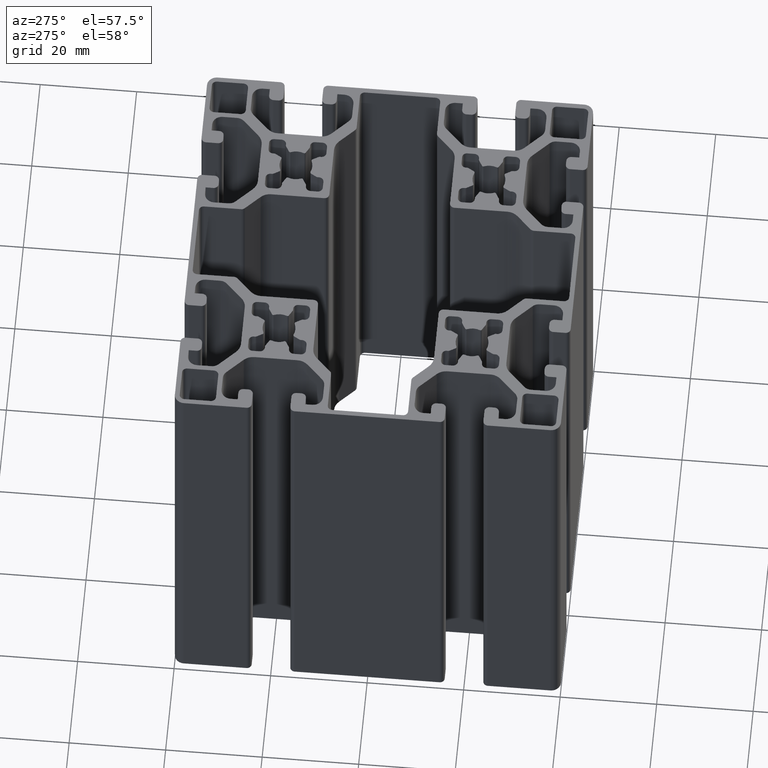
[diagram: clean part render]
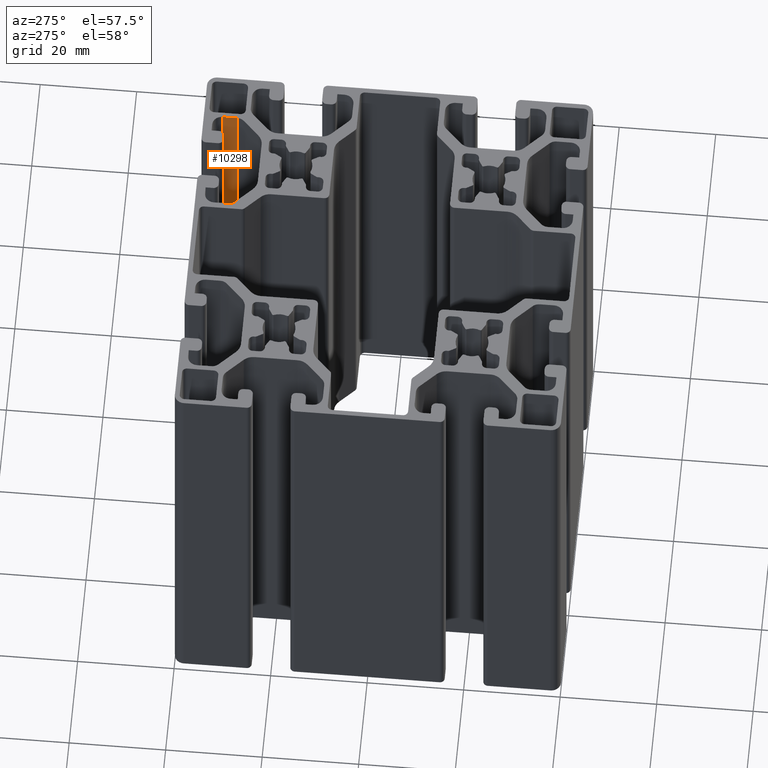
[diagram: same view with one face highlighted and labeled with its STEP entity id]
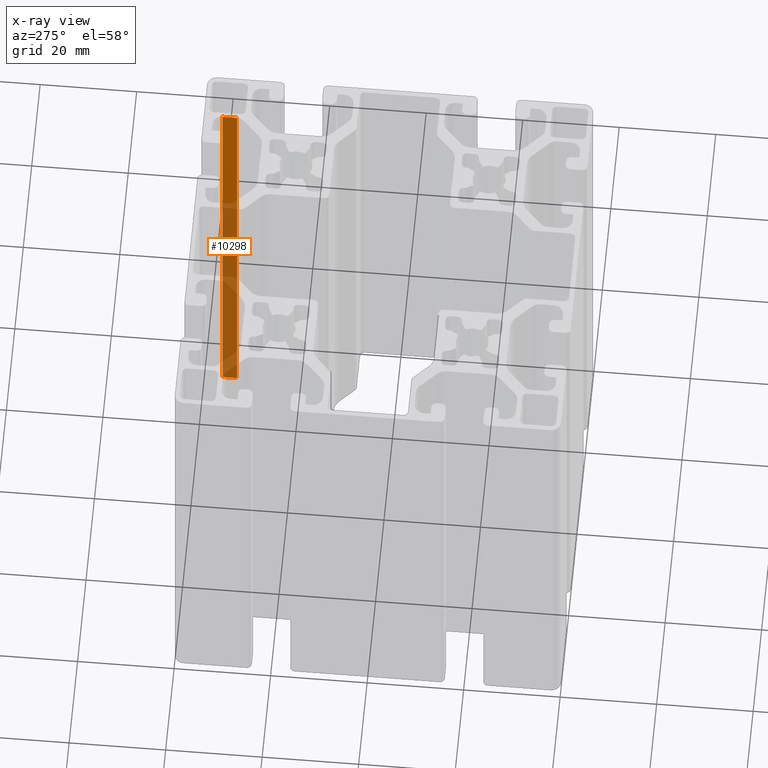
[diagram: x-ray of the same camera — body ghosted, the highlighted face saturated]
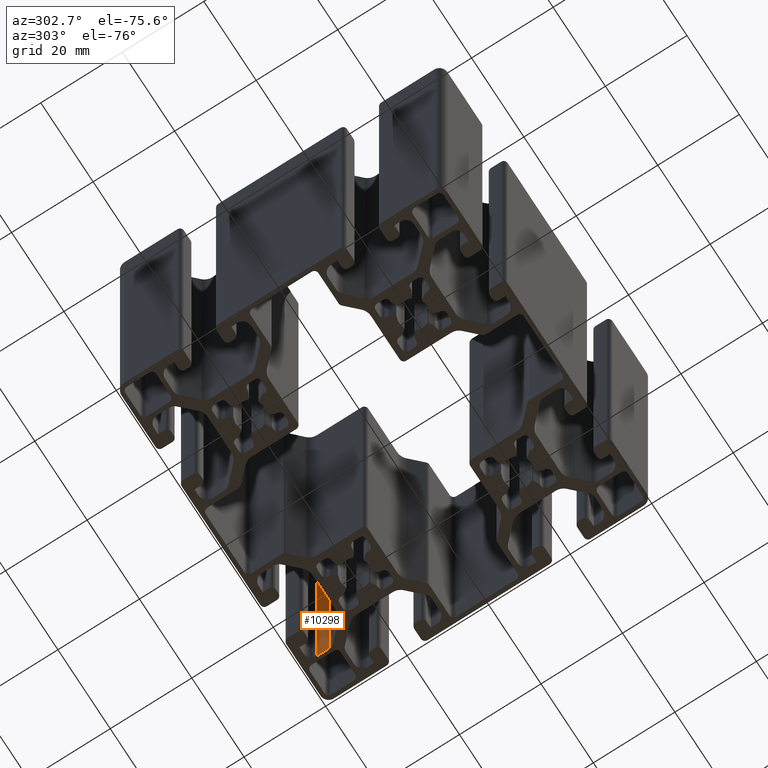
[diagram: same view with one face highlighted and labeled with its STEP entity id]
A machine part, auxiliary view. The second image highlights one B-rep face of the part: STEP entity #10298.
The next image is the same camera in x-ray: the body ghosted, the highlighted face saturated — about 67% of this face is hidden behind the body in this view.
A second angle (auxiliary view) of the same face is appended — the face is thin or edge-on in the first view.
In plain terms, the highlighted planar face has unit normal (1, 0, 0).
Its self-contained STEP definition (entity closure, byte-faithful):
#1074=FACE_OUTER_BOUND('',#1604,.T.);
#1604=EDGE_LOOP('',(#7547,#7548,#7549,#7550));
#2391=LINE('',#16243,#3431);
#2392=LINE('',#16246,#3432);
#2393=LINE('',#16248,#3433);
#2394=LINE('',#16249,#3434);
#3431=VECTOR('',#13031,100.);
#3432=VECTOR('',#13034,3.00380592228743);
#3433=VECTOR('',#13035,3.00380592228743);
#3434=VECTOR('',#13036,100.);
#4471=VERTEX_POINT('',#16239);
#4472=VERTEX_POINT('',#16241);
#4473=VERTEX_POINT('',#16245);
#4474=VERTEX_POINT('',#16247);
#5745=EDGE_CURVE('',#4472,#4471,#2391,.T.);
#5746=EDGE_CURVE('',#4471,#4473,#2392,.T.);
#5747=EDGE_CURVE('',#4474,#4472,#2393,.T.);
#5748=EDGE_CURVE('',#4474,#4473,#2394,.T.);
#7547=ORIENTED_EDGE('',*,*,#5746,.F.);
#7548=ORIENTED_EDGE('',*,*,#5745,.F.);
#7549=ORIENTED_EDGE('',*,*,#5747,.F.);
#7550=ORIENTED_EDGE('',*,*,#5748,.T.);
#9931=PLANE('',#11048);
#10298=ADVANCED_FACE('',(#1074),#9931,.F.);
#11048=AXIS2_PLACEMENT_3D('',#16244,#13032,#13033);
#13031=DIRECTION('',(0.,0.,1.));
#13032=DIRECTION('center_axis',(1.,1.47842178003259E-15,0.));
#13033=DIRECTION('ref_axis',(0.,0.,-1.));
#13034=DIRECTION('',(1.4784217800326E-15,-1.,0.));
#13035=DIRECTION('',(-1.4784217800326E-15,1.,0.));
#13036=DIRECTION('',(0.,0.,1.));
#16239=CARTESIAN_POINT('',(30.5,36.1,100.));
#16241=CARTESIAN_POINT('',(30.5,36.1,0.));
#16243=CARTESIAN_POINT('',(30.5,36.1,0.));
#16244=CARTESIAN_POINT('Origin',(30.5,36.1,0.));
#16245=CARTESIAN_POINT('',(30.5,33.0961940777126,100.));
#16246=CARTESIAN_POINT('',(30.5,18.05,100.));
#16247=CARTESIAN_POINT('',(30.5,33.0961940777126,0.));
#16248=CARTESIAN_POINT('',(30.5,18.05,0.));
#16249=CARTESIAN_POINT('',(30.5,33.0961940777126,0.));